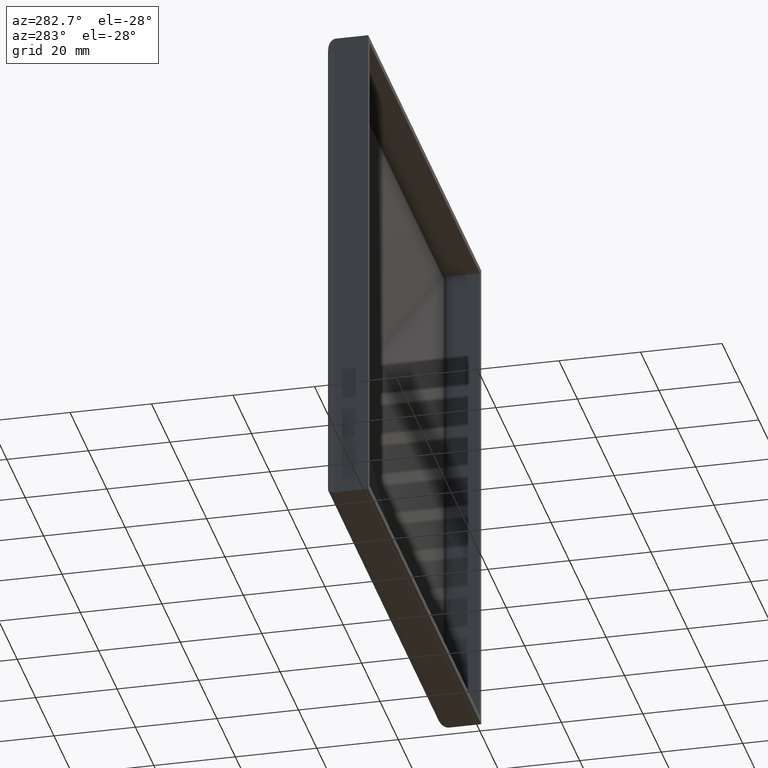
[diagram: clean part render]
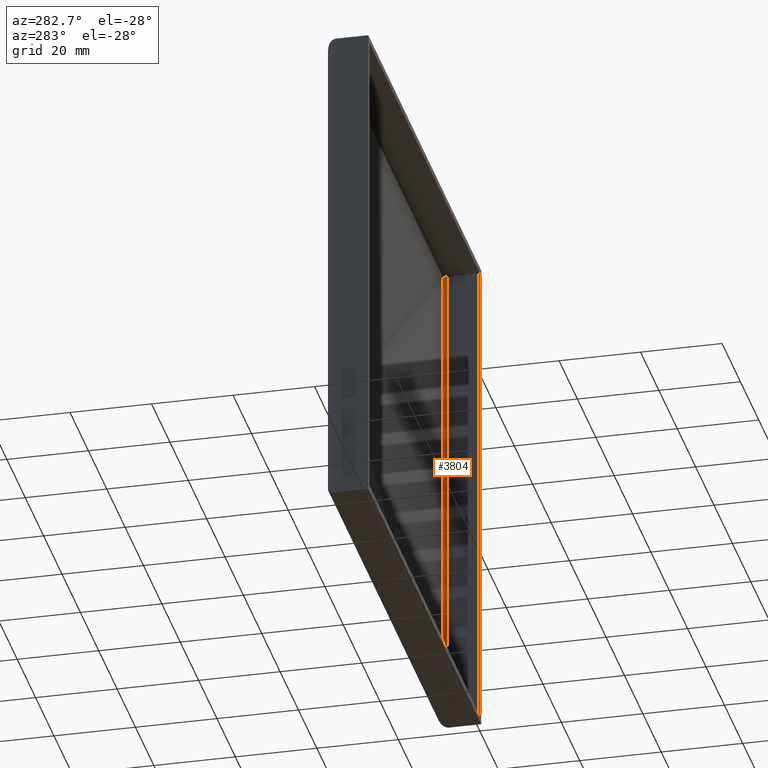
[diagram: same view with one face highlighted and labeled with its STEP entity id]
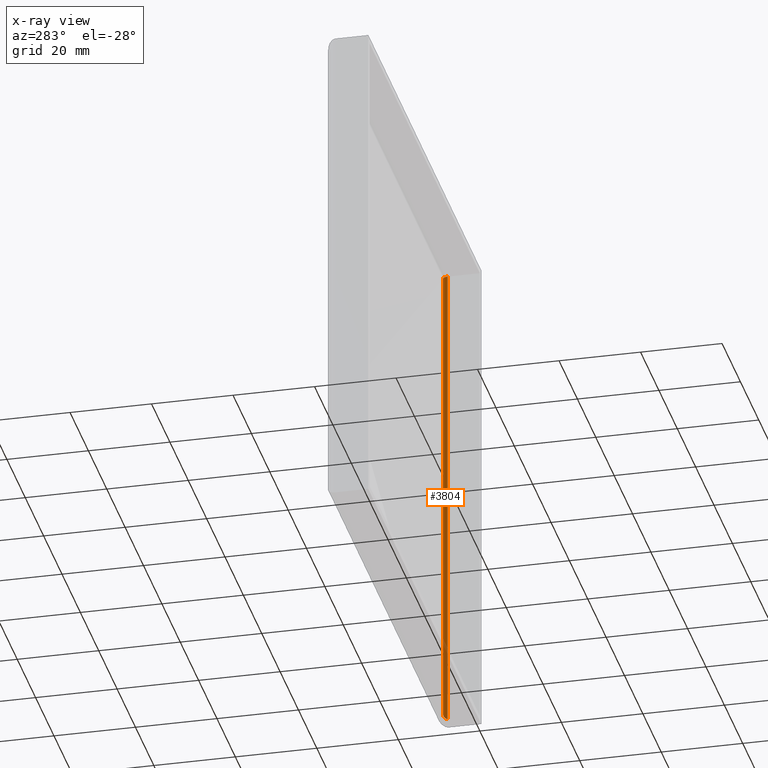
[diagram: x-ray of the same camera — body ghosted, the highlighted face saturated]
A machine part, auxiliary view. The second image highlights one B-rep face of the part: STEP entity #3804.
The next image is the same camera in x-ray: the body ghosted, the highlighted face saturated — about 11% of this face is hidden behind the body in this view.
In plain terms, the highlighted cylindrical surface (edge-blend (fillet) strip) has radius 1 mm, axis along (-0, -0, 1).
Its self-contained STEP definition (entity closure, byte-faithful):
#305 = VECTOR ( 'NONE', #3963, 1000.000000000000000 ) ;
#420 = ORIENTED_EDGE ( 'NONE', *, *, #12633, .T. ) ;
#479 = EDGE_CURVE ( 'NONE', #8893, #7990, #3982, .T. ) ;
#1266 = CARTESIAN_POINT ( 'NONE',  ( 60.00000000000005700, 7.873715392397326000, -60.00000000000005700 ) ) ;
#1385 = ORIENTED_EDGE ( 'NONE', *, *, #479, .F. ) ;
#1394 = AXIS2_PLACEMENT_3D ( 'NONE', #3053, #6114, #7118 ) ;
#2003 = CARTESIAN_POINT ( 'NONE',  ( 59.16051433719400900, 8.860748901228451000, 59.16051433719399500 ) ) ;
#2025 = EDGE_LOOP ( 'NONE', ( #420, #8875, #8285, #1385 ) ) ;
#2441 = DIRECTION ( 'NONE',  ( 1.128275431529630700E-016, 0.0000000000000000000, 1.000000000000000000 ) ) ;
#2563 = CYLINDRICAL_SURFACE ( 'NONE', #1394, 1.000000000000098100 ) ;
#2837 = VERTEX_POINT ( 'NONE', #12129 ) ;
#3053 = CARTESIAN_POINT ( 'NONE',  ( 59.00000000000001400, 7.873715392397326000, -61.50000000000000000 ) ) ;
#3804 = ADVANCED_FACE ( 'NONE', ( #4613 ), #2563, .F. ) ;
#3963 = DIRECTION ( 'NONE',  ( -0.0000000000000000000, -0.0000000000000000000, 1.000000000000000000 ) ) ;
#3982 = LINE ( 'NONE', #7962, #305 ) ;
#4111 = CARTESIAN_POINT ( 'NONE',  ( 60.00000000000006400, 7.873715392397324200, 60.00000000000005700 ) ) ;
#4613 = FACE_OUTER_BOUND ( 'NONE', #2025, .T. ) ;
#5011 = CARTESIAN_POINT ( 'NONE',  ( 60.00000000000011400, 8.387190816250122100, 60.00000000000011400 ) ) ;
#5067 = CARTESIAN_POINT ( 'NONE',  ( 59.66733178649789700, 8.778328733903272500, 59.66733178649789700 ) ) ;
#5630 = LINE ( 'NONE', #8496, #8817 ) ;
#5679 = CARTESIAN_POINT ( 'NONE',  ( 60.00000000000009900, 8.387190816250068800, -60.00000000000010700 ) ) ;
#6114 = DIRECTION ( 'NONE',  ( -0.0000000000000000000, -0.0000000000000000000, 1.000000000000000000 ) ) ;
#6698 = CARTESIAN_POINT ( 'NONE',  ( 60.00000000000005700, 7.873715392397326000, -60.00000000000005700 ) ) ;
#7118 = DIRECTION ( 'NONE',  ( 1.000000000000000000, 0.0000000000000000000, 0.0000000000000000000 ) ) ;
#7962 = CARTESIAN_POINT ( 'NONE',  ( 59.16051433719396600, 8.860748901228401300, -61.50000000000000000 ) ) ;
#7990 = VERTEX_POINT ( 'NONE', #8662 ) ;
#8285 = ORIENTED_EDGE ( 'NONE', *, *, #10648, .T. ) ;
#8496 = CARTESIAN_POINT ( 'NONE',  ( 60.00000000000000000, 7.873715392397326000, -61.50000000000000000 ) ) ;
#8662 = CARTESIAN_POINT ( 'NONE',  ( 59.16051433719400900, 8.860748901228451000, 59.16051433719399500 ) ) ;
#8817 = VECTOR ( 'NONE', #2441, 1000.000000000000000 ) ;
#8875 = ORIENTED_EDGE ( 'NONE', *, *, #9671, .T. ) ;
#8893 = VERTEX_POINT ( 'NONE', #12280 ) ;
#9671 = EDGE_CURVE ( 'NONE', #10010, #2837, #5630, .T. ) ;
#9925 =( BOUNDED_CURVE ( )  B_SPLINE_CURVE ( 3, ( #4111, #5011, #5067, #2003 ),
 .UNSPECIFIED., .F., .F. ) 
 B_SPLINE_CURVE_WITH_KNOTS ( ( 4, 4 ),
 ( 0.0000000000000000000, 1.409584601942652800 ),
 .UNSPECIFIED. ) 
 CURVE ( )  GEOMETRIC_REPRESENTATION_ITEM ( )  RATIONAL_B_SPLINE_CURVE ( ( 1.000000000000000000, 0.8411640875536659000, 0.8411640875536659000, 1.000000000000000000 ) ) 
 REPRESENTATION_ITEM ( '' )  );
#10010 = VERTEX_POINT ( 'NONE', #1266 ) ;
#10648 = EDGE_CURVE ( 'NONE', #2837, #7990, #9925, .T. ) ;
#11744 = CARTESIAN_POINT ( 'NONE',  ( 59.16051433719399500, 8.860748901228443900, -59.16051433719424300 ) ) ;
#11884 =( BOUNDED_CURVE ( )  B_SPLINE_CURVE ( 3, ( #11744, #12781, #5679, #6698 ),
 .UNSPECIFIED., .F., .T. ) 
 B_SPLINE_CURVE_WITH_KNOTS ( ( 4, 4 ),
 ( 1.732008051647255600, 3.141592653589793100 ),
 .UNSPECIFIED. ) 
 CURVE ( )  GEOMETRIC_REPRESENTATION_ITEM ( )  RATIONAL_B_SPLINE_CURVE ( ( 1.000000000000000000, 0.8411640875536907600, 0.8411640875536907600, 1.000000000000000000 ) ) 
 REPRESENTATION_ITEM ( '' )  );
#12129 = CARTESIAN_POINT ( 'NONE',  ( 60.00000000000006400, 7.873715392397324200, 60.00000000000005700 ) ) ;
#12280 = CARTESIAN_POINT ( 'NONE',  ( 59.16051433719399500, 8.860748901228443900, -59.16051433719424300 ) ) ;
#12633 = EDGE_CURVE ( 'NONE', #8893, #10010, #11884, .T. ) ;
#12781 = CARTESIAN_POINT ( 'NONE',  ( 59.66733178649794000, 8.778328733903201500, -59.66733178649794000 ) ) ;